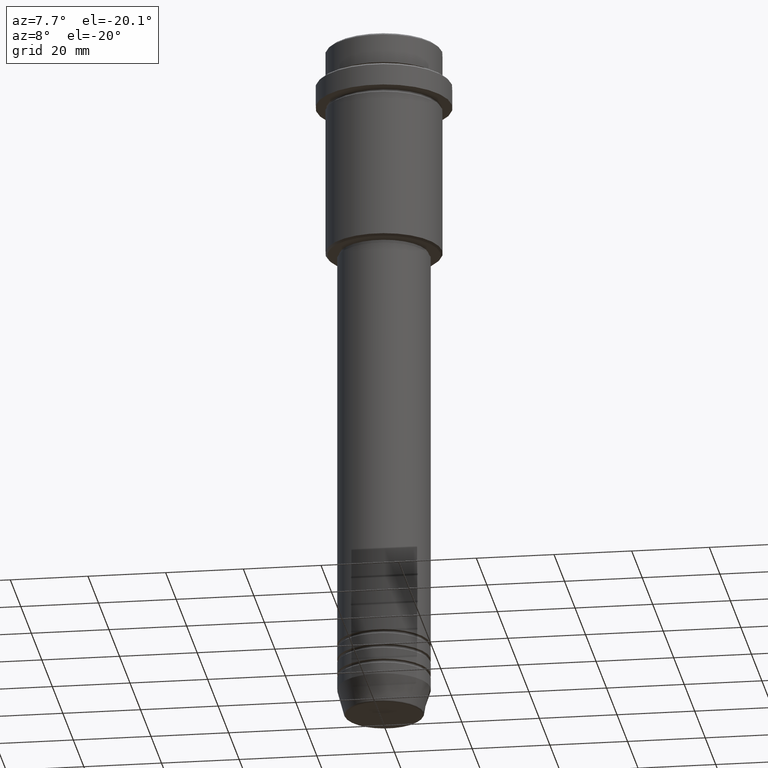
[diagram: clean part render]
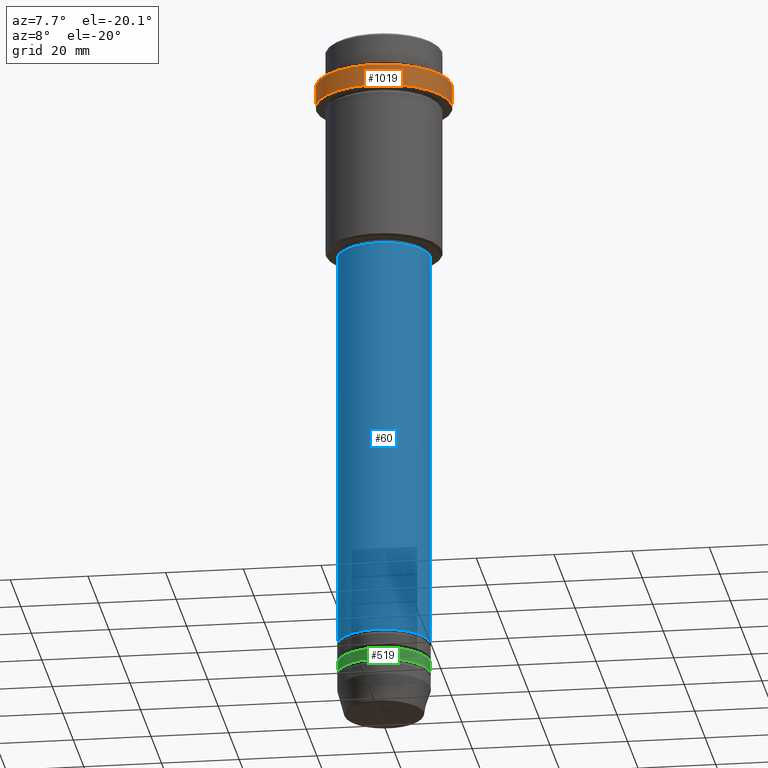
[diagram: same view with three faces highlighted in distinct colors, each labeled with its STEP entity id]
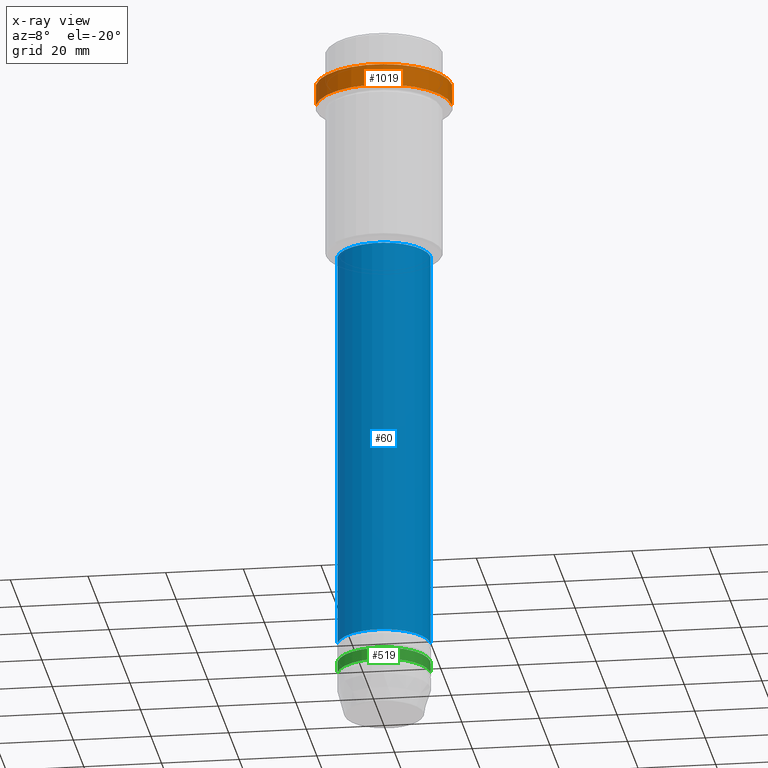
[diagram: x-ray of the same camera — body ghosted, the three highlighted faces saturated]
A machine part, auxiliary view with three faces highlighted in distinct colors.
The next image is the same camera in x-ray (body ghosted, the three faces saturated) — at least one of them is partly hidden behind the body in this view.
Their STEP definitions:

[orange] entity #1019 — the highlighted cylindrical surface (partial cylindrical patch) has radius 17.5 mm, axis along (-0, -0, 1).
#30 = ORIENTED_EDGE ( 'NONE', *, *, #1174, .T. ) ;
#68 = VERTEX_POINT ( 'NONE', #218 ) ;
#165 = CARTESIAN_POINT ( 'NONE',  ( -17.50000000000000000, 2.143131898507868248E-15, -9.500000000000000000 ) ) ;
#218 = CARTESIAN_POINT ( 'NONE',  ( -17.50000000000000000, 2.143131898507868248E-15, -15.00000000000000000 ) ) ;
#226 = EDGE_LOOP ( 'NONE', ( #497, #30, #1153, #1025 ) ) ;
#264 = DIRECTION ( 'NONE',  ( -0.000000000000000000, -0.000000000000000000, 1.000000000000000000 ) ) ;
#331 = DIRECTION ( 'NONE',  ( 0.000000000000000000, 0.000000000000000000, -1.000000000000000000 ) ) ;
#364 = CARTESIAN_POINT ( 'NONE',  ( 17.50000000000000000, 0.000000000000000000, -15.00000000000000000 ) ) ;
#368 = CARTESIAN_POINT ( 'NONE',  ( 0.000000000000000000, 0.000000000000000000, -15.00000000000000000 ) ) ;
#389 = VECTOR ( 'NONE', #1360, 1000.000000000000000 ) ;
#432 = EDGE_CURVE ( 'NONE', #836, #975, #728, .T. ) ;
#450 = CARTESIAN_POINT ( 'NONE',  ( -17.50000000000000000, 2.143131898507868248E-15, 0.000000000000000000 ) ) ;
#497 = ORIENTED_EDGE ( 'NONE', *, *, #1115, .F. ) ;
#596 = FACE_OUTER_BOUND ( 'NONE', #226, .T. ) ;
#635 = VECTOR ( 'NONE', #1244, 1000.000000000000000 ) ;
#667 = CARTESIAN_POINT ( 'NONE',  ( 17.50000000000000000, 0.000000000000000000, -9.500000000000000000 ) ) ;
#728 = CIRCLE ( 'NONE', #790, 17.50000000000000000 ) ;
#790 = AXIS2_PLACEMENT_3D ( 'NONE', #1414, #331, #1197 ) ;
#799 = DIRECTION ( 'NONE',  ( 1.000000000000000000, 0.000000000000000000, 0.000000000000000000 ) ) ;
#807 = CYLINDRICAL_SURFACE ( 'NONE', #1050, 17.50000000000000000 ) ;
#818 = CARTESIAN_POINT ( 'NONE',  ( 17.50000000000000000, 0.000000000000000000, 0.000000000000000000 ) ) ;
#836 = VERTEX_POINT ( 'NONE', #667 ) ;
#904 = LINE ( 'NONE', #450, #635 ) ;
#912 = DIRECTION ( 'NONE',  ( 1.000000000000000000, 0.000000000000000000, 0.000000000000000000 ) ) ;
#927 = CIRCLE ( 'NONE', #1180, 17.50000000000000000 ) ;
#975 = VERTEX_POINT ( 'NONE', #165 ) ;
#1015 = CARTESIAN_POINT ( 'NONE',  ( 0.000000000000000000, 0.000000000000000000, 0.000000000000000000 ) ) ;
#1019 = ADVANCED_FACE ( 'NONE', ( #596 ), #807, .T. ) ;
#1025 = ORIENTED_EDGE ( 'NONE', *, *, #432, .T. ) ;
#1040 = VERTEX_POINT ( 'NONE', #364 ) ;
#1050 = AXIS2_PLACEMENT_3D ( 'NONE', #1015, #1117, #912 ) ;
#1063 = LINE ( 'NONE', #818, #389 ) ;
#1115 = EDGE_CURVE ( 'NONE', #68, #975, #904, .T. ) ;
#1117 = DIRECTION ( 'NONE',  ( -0.000000000000000000, -0.000000000000000000, 1.000000000000000000 ) ) ;
#1153 = ORIENTED_EDGE ( 'NONE', *, *, #1413, .T. ) ;
#1174 = EDGE_CURVE ( 'NONE', #68, #1040, #927, .T. ) ;
#1180 = AXIS2_PLACEMENT_3D ( 'NONE', #368, #264, #799 ) ;
#1197 = DIRECTION ( 'NONE',  ( 1.000000000000000000, 0.000000000000000000, 0.000000000000000000 ) ) ;
#1244 = DIRECTION ( 'NONE',  ( -0.000000000000000000, -0.000000000000000000, 1.000000000000000000 ) ) ;
#1360 = DIRECTION ( 'NONE',  ( -0.000000000000000000, -0.000000000000000000, 1.000000000000000000 ) ) ;
#1413 = EDGE_CURVE ( 'NONE', #1040, #836, #1063, .T. ) ;
#1414 = CARTESIAN_POINT ( 'NONE',  ( 0.000000000000000000, 0.000000000000000000, -9.500000000000000000 ) ) ;

[blue] entity #60 — the highlighted cylindrical surface (partial cylindrical patch) has radius 12 mm, axis along (-0, -0, 1).
#13 = CARTESIAN_POINT ( 'NONE',  ( 12.00000000000000000, 0.000000000000000000, -160.9999999999998579 ) ) ;
#40 = LINE ( 'NONE', #359, #442 ) ;
#60 = ADVANCED_FACE ( 'NONE', ( #321 ), #211, .T. ) ;
#134 = EDGE_CURVE ( 'NONE', #883, #1400, #899, .T. ) ;
#184 = VERTEX_POINT ( 'NONE', #1151 ) ;
#211 = CYLINDRICAL_SURFACE ( 'NONE', #329, 12.00000000000000000 ) ;
#233 = DIRECTION ( 'NONE',  ( -0.000000000000000000, -0.000000000000000000, 1.000000000000000000 ) ) ;
#240 = CARTESIAN_POINT ( 'NONE',  ( -11.99999999999999822, 1.469576158976823750E-15, -55.99999999999999289 ) ) ;
#244 = EDGE_LOOP ( 'NONE', ( #1393, #1370, #1411, #798 ) ) ;
#321 = FACE_OUTER_BOUND ( 'NONE', #244, .T. ) ;
#329 = AXIS2_PLACEMENT_3D ( 'NONE', #429, #655, #1080 ) ;
#359 = CARTESIAN_POINT ( 'NONE',  ( 12.00000000000000000, 0.000000000000000000, 0.000000000000000000 ) ) ;
#365 = CARTESIAN_POINT ( 'NONE',  ( 0.000000000000000000, 0.000000000000000000, -160.9999999999998579 ) ) ;
#429 = CARTESIAN_POINT ( 'NONE',  ( 0.000000000000000000, 0.000000000000000000, 0.000000000000000000 ) ) ;
#442 = VECTOR ( 'NONE', #474, 1000.000000000000000 ) ;
#466 = DIRECTION ( 'NONE',  ( 1.000000000000000000, 0.000000000000000000, 0.000000000000000000 ) ) ;
#474 = DIRECTION ( 'NONE',  ( -0.000000000000000000, -0.000000000000000000, 1.000000000000000000 ) ) ;
#487 = DIRECTION ( 'NONE',  ( -0.000000000000000000, -0.000000000000000000, 1.000000000000000000 ) ) ;
#530 = CARTESIAN_POINT ( 'NONE',  ( 11.99999999999999822, 0.000000000000000000, -55.99999999999999289 ) ) ;
#554 = EDGE_CURVE ( 'NONE', #1200, #1400, #40, .T. ) ;
#600 = CARTESIAN_POINT ( 'NONE',  ( 0.000000000000000000, 0.000000000000000000, -55.99999999999999289 ) ) ;
#655 = DIRECTION ( 'NONE',  ( -0.000000000000000000, -0.000000000000000000, 1.000000000000000000 ) ) ;
#798 = ORIENTED_EDGE ( 'NONE', *, *, #134, .F. ) ;
#802 = LINE ( 'NONE', #1336, #1049 ) ;
#883 = VERTEX_POINT ( 'NONE', #240 ) ;
#899 = CIRCLE ( 'NONE', #1359, 11.99999999999999822 ) ;
#1007 = DIRECTION ( 'NONE',  ( 1.000000000000000000, 0.000000000000000000, 0.000000000000000000 ) ) ;
#1049 = VECTOR ( 'NONE', #233, 1000.000000000000000 ) ;
#1080 = DIRECTION ( 'NONE',  ( 1.000000000000000000, 0.000000000000000000, 0.000000000000000000 ) ) ;
#1151 = CARTESIAN_POINT ( 'NONE',  ( -12.00000000000000000, 1.469576158976823947E-15, -160.9999999999998579 ) ) ;
#1200 = VERTEX_POINT ( 'NONE', #13 ) ;
#1207 = DIRECTION ( 'NONE',  ( -0.000000000000000000, -0.000000000000000000, 1.000000000000000000 ) ) ;
#1273 = CIRCLE ( 'NONE', #1395, 12.00000000000000000 ) ;
#1336 = CARTESIAN_POINT ( 'NONE',  ( -12.00000000000000000, 1.469576158976823947E-15, 0.000000000000000000 ) ) ;
#1359 = AXIS2_PLACEMENT_3D ( 'NONE', #600, #487, #466 ) ;
#1367 = EDGE_CURVE ( 'NONE', #184, #1200, #1273, .T. ) ;
#1370 = ORIENTED_EDGE ( 'NONE', *, *, #1367, .T. ) ;
#1372 = EDGE_CURVE ( 'NONE', #184, #883, #802, .T. ) ;
#1393 = ORIENTED_EDGE ( 'NONE', *, *, #1372, .F. ) ;
#1395 = AXIS2_PLACEMENT_3D ( 'NONE', #365, #1207, #1007 ) ;
#1400 = VERTEX_POINT ( 'NONE', #530 ) ;
#1411 = ORIENTED_EDGE ( 'NONE', *, *, #554, .T. ) ;

[green] entity #519 — the highlighted cylindrical surface (partial cylindrical patch) has radius 12 mm, axis along (-0, -0, 1).
#4 = DIRECTION ( 'NONE',  ( -0.000000000000000000, -0.000000000000000000, 1.000000000000000000 ) ) ;
#10 = ORIENTED_EDGE ( 'NONE', *, *, #616, .F. ) ;
#11 = DIRECTION ( 'NONE',  ( -0.000000000000000000, -0.000000000000000000, 1.000000000000000000 ) ) ;
#22 = DIRECTION ( 'NONE',  ( 1.000000000000000000, 0.000000000000000000, 0.000000000000000000 ) ) ;
#33 = CARTESIAN_POINT ( 'NONE',  ( 0.000000000000000000, 0.000000000000000000, 0.000000000000000000 ) ) ;
#115 = CYLINDRICAL_SURFACE ( 'NONE', #239, 12.00000000000000000 ) ;
#146 = ORIENTED_EDGE ( 'NONE', *, *, #969, .T. ) ;
#205 = EDGE_CURVE ( 'NONE', #934, #410, #1240, .T. ) ;
#239 = AXIS2_PLACEMENT_3D ( 'NONE', #33, #11, #340 ) ;
#256 = AXIS2_PLACEMENT_3D ( 'NONE', #258, #606, #22 ) ;
#258 = CARTESIAN_POINT ( 'NONE',  ( 0.000000000000000000, 0.000000000000000000, -168.9999999999998863 ) ) ;
#310 = CARTESIAN_POINT ( 'NONE',  ( 12.00000000000000000, 0.000000000000000000, -165.9999999999998579 ) ) ;
#340 = DIRECTION ( 'NONE',  ( 1.000000000000000000, 0.000000000000000000, 0.000000000000000000 ) ) ;
#372 = EDGE_LOOP ( 'NONE', ( #10, #146, #467, #1109 ) ) ;
#385 = CARTESIAN_POINT ( 'NONE',  ( 0.000000000000000000, 0.000000000000000000, -165.9999999999998579 ) ) ;
#399 = VECTOR ( 'NONE', #4, 1000.000000000000000 ) ;
#410 = VERTEX_POINT ( 'NONE', #310 ) ;
#444 = CARTESIAN_POINT ( 'NONE',  ( 12.00000000000000000, 0.000000000000000000, -168.9999999999998863 ) ) ;
#462 = EDGE_CURVE ( 'NONE', #842, #410, #637, .T. ) ;
#467 = ORIENTED_EDGE ( 'NONE', *, *, #462, .T. ) ;
#500 = DIRECTION ( 'NONE',  ( -0.000000000000000000, -0.000000000000000000, 1.000000000000000000 ) ) ;
#519 = ADVANCED_FACE ( 'NONE', ( #1122 ), #115, .T. ) ;
#587 = DIRECTION ( 'NONE',  ( -0.000000000000000000, -0.000000000000000000, 1.000000000000000000 ) ) ;
#606 = DIRECTION ( 'NONE',  ( -0.000000000000000000, -0.000000000000000000, 1.000000000000000000 ) ) ;
#616 = EDGE_CURVE ( 'NONE', #1142, #934, #784, .T. ) ;
#637 = LINE ( 'NONE', #1077, #399 ) ;
#784 = LINE ( 'NONE', #990, #903 ) ;
#842 = VERTEX_POINT ( 'NONE', #444 ) ;
#903 = VECTOR ( 'NONE', #587, 1000.000000000000000 ) ;
#911 = CARTESIAN_POINT ( 'NONE',  ( -12.00000000000000000, 1.469576158976823947E-15, -168.9999999999998863 ) ) ;
#934 = VERTEX_POINT ( 'NONE', #1358 ) ;
#969 = EDGE_CURVE ( 'NONE', #1142, #842, #1274, .T. ) ;
#990 = CARTESIAN_POINT ( 'NONE',  ( -12.00000000000000000, 1.469576158976823947E-15, 0.000000000000000000 ) ) ;
#1077 = CARTESIAN_POINT ( 'NONE',  ( 12.00000000000000000, 0.000000000000000000, 0.000000000000000000 ) ) ;
#1109 = ORIENTED_EDGE ( 'NONE', *, *, #205, .F. ) ;
#1122 = FACE_OUTER_BOUND ( 'NONE', #372, .T. ) ;
#1137 = DIRECTION ( 'NONE',  ( 1.000000000000000000, 0.000000000000000000, 0.000000000000000000 ) ) ;
#1142 = VERTEX_POINT ( 'NONE', #911 ) ;
#1240 = CIRCLE ( 'NONE', #1304, 12.00000000000000000 ) ;
#1274 = CIRCLE ( 'NONE', #256, 12.00000000000000000 ) ;
#1304 = AXIS2_PLACEMENT_3D ( 'NONE', #385, #500, #1137 ) ;
#1358 = CARTESIAN_POINT ( 'NONE',  ( -12.00000000000000000, 1.469576158976823947E-15, -165.9999999999998579 ) ) ;